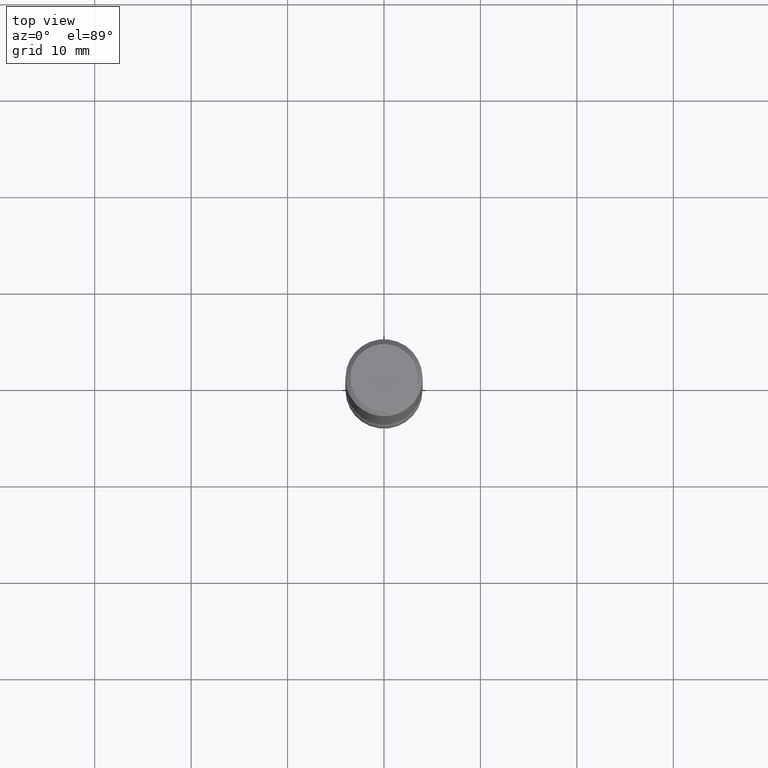
[diagram: clean part render]
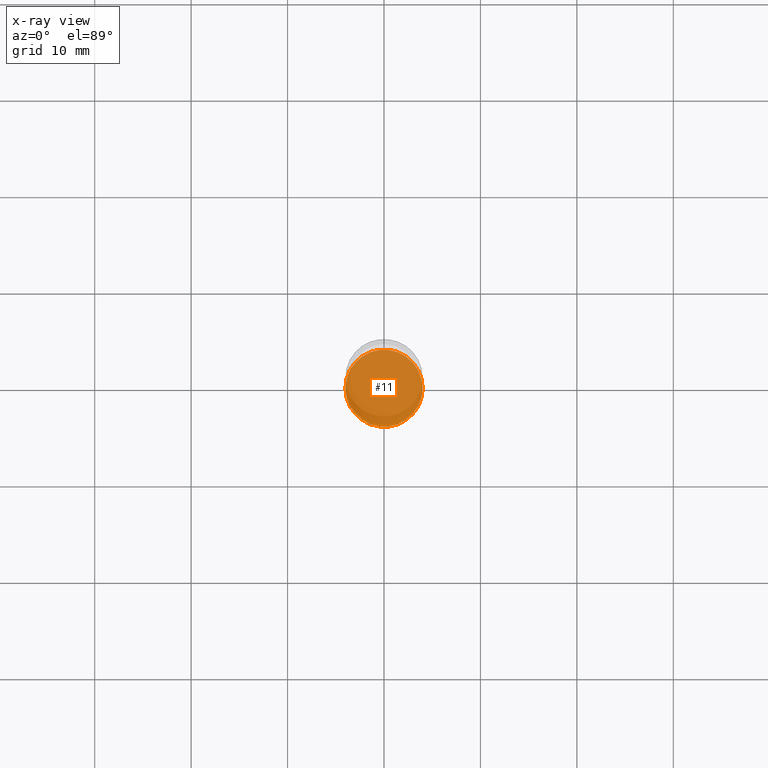
[diagram: x-ray — body ghosted, one internal face saturated and labeled with its STEP entity id]
A machine part, top view, then the same camera in x-ray: the body is ghosted and one INTERNAL B-rep face — a face not visible from any outside direction — is saturated and labeled: STEP entity #11.
In plain terms, the highlighted planar face has unit normal (0, -0, -1).
Its self-contained STEP definition (entity closure, byte-faithful):
#11 = ADVANCED_FACE ( 'NONE', ( #318 ), #238, .F. ) ;
#24 = DIRECTION ( 'NONE',  ( 2.438088387897960049E-29, -3.491481338843145188E-15, -1.000000000000000000 ) ) ;
#37 = EDGE_CURVE ( 'NONE', #130, #234, #95, .T. ) ;
#43 = CARTESIAN_POINT ( 'NONE',  ( -0.1575000000000001399, -8.262680122716315885E-15, -2.480399999999999494 ) ) ;
#52 = DIRECTION ( 'NONE',  ( -2.445468806185136597E-29, 3.491481338843145583E-15, 1.000000000000000000 ) ) ;
#61 = DIRECTION ( 'NONE',  ( 1.000000000000000000, -6.982962677686268288E-15, 0.000000000000000000 ) ) ;
#95 = CIRCLE ( 'NONE', #205, 0.1575000000000001399 ) ;
#97 = AXIS2_PLACEMENT_3D ( 'NONE', #191, #52, #61 ) ;
#130 = VERTEX_POINT ( 'NONE', #509 ) ;
#160 = EDGE_LOOP ( 'NONE', ( #304, #317 ) ) ;
#191 = CARTESIAN_POINT ( 'NONE',  ( 6.065740826861612418E-29, -8.660270312866537270E-15, -2.480399999999999494 ) ) ;
#201 = DIRECTION ( 'NONE',  ( -2.445468806185136597E-29, 3.491481338843145583E-15, 1.000000000000000000 ) ) ;
#205 = AXIS2_PLACEMENT_3D ( 'NONE', #280, #201, #364 ) ;
#234 = VERTEX_POINT ( 'NONE', #43 ) ;
#238 = PLANE ( 'NONE',  #410 ) ;
#280 = CARTESIAN_POINT ( 'NONE',  ( 6.065740826861612418E-29, -8.660270312866537270E-15, -2.480399999999999494 ) ) ;
#284 = DIRECTION ( 'NONE',  ( -1.000000000000000000, 6.982962677686265922E-15, -4.876176775795935793E-29 ) ) ;
#304 = ORIENTED_EDGE ( 'NONE', *, *, #37, .T. ) ;
#317 = ORIENTED_EDGE ( 'NONE', *, *, #475, .T. ) ;
#318 = FACE_OUTER_BOUND ( 'NONE', #160, .T. ) ;
#359 = CIRCLE ( 'NONE', #97, 0.1575000000000001399 ) ;
#364 = DIRECTION ( 'NONE',  ( 1.000000000000000000, -6.982962677686268288E-15, 0.000000000000000000 ) ) ;
#410 = AXIS2_PLACEMENT_3D ( 'NONE', #412, #24, #284 ) ;
#412 = CARTESIAN_POINT ( 'NONE',  ( 6.065740826861612418E-29, -8.660270312866537270E-15, -2.480399999999999494 ) ) ;
#475 = EDGE_CURVE ( 'NONE', #234, #130, #359, .T. ) ;
#509 = CARTESIAN_POINT ( 'NONE',  ( 0.1575000000000001399, -9.760086934602125539E-15, -2.480399999999999494 ) ) ;